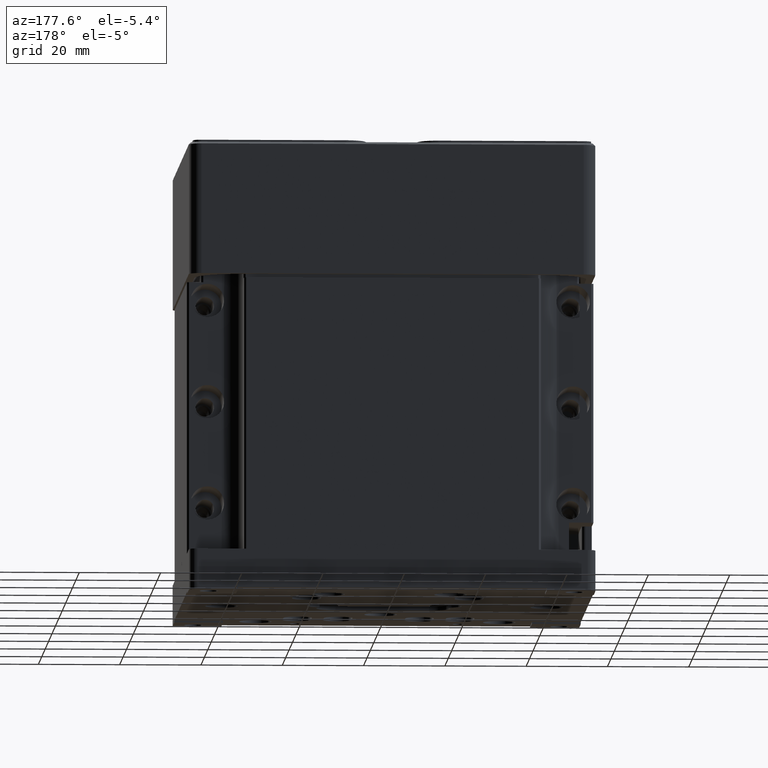
[diagram: clean part render]
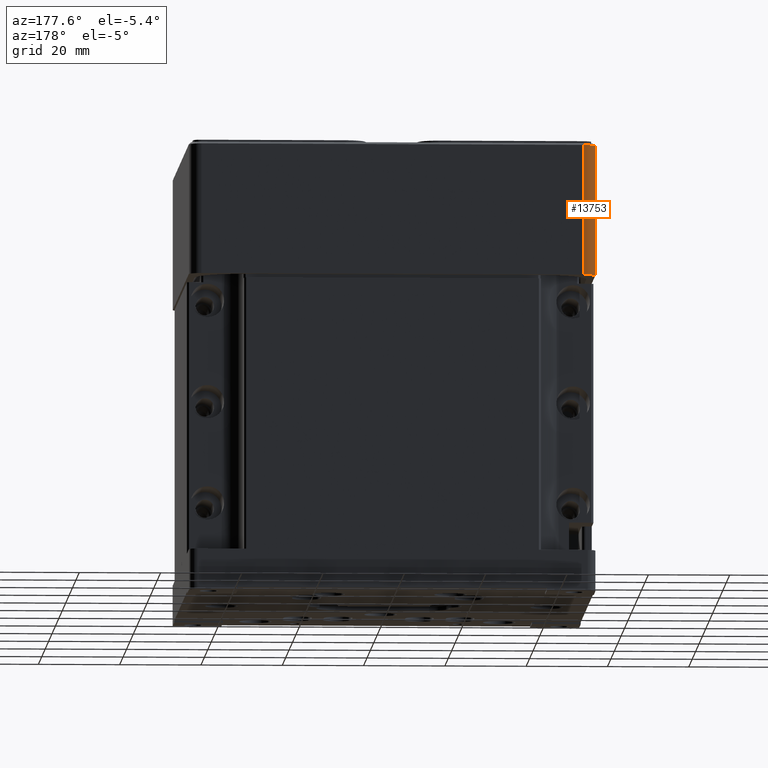
[diagram: same view with one face highlighted and labeled with its STEP entity id]
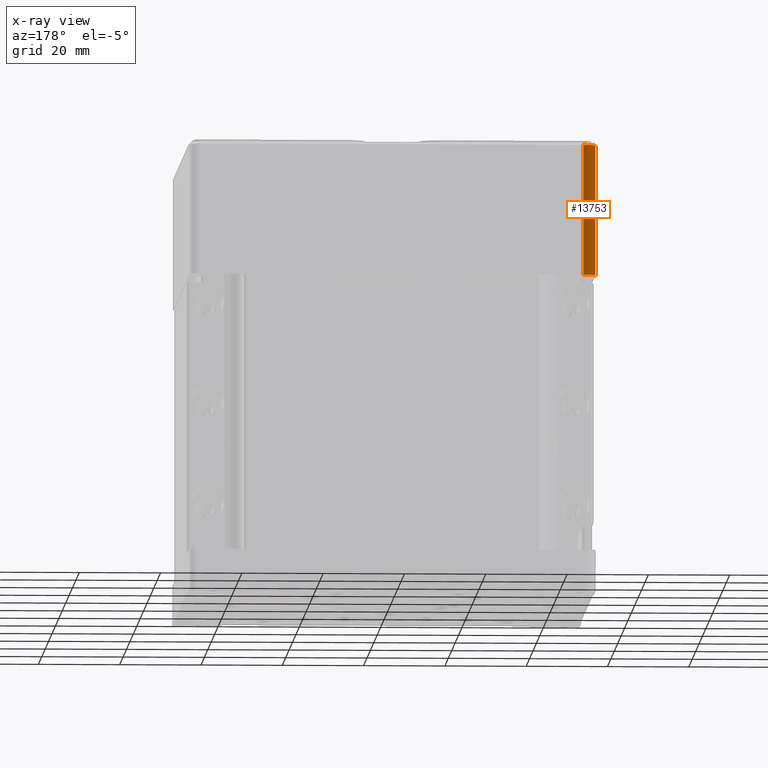
[diagram: x-ray of the same camera — body ghosted, the highlighted face saturated]
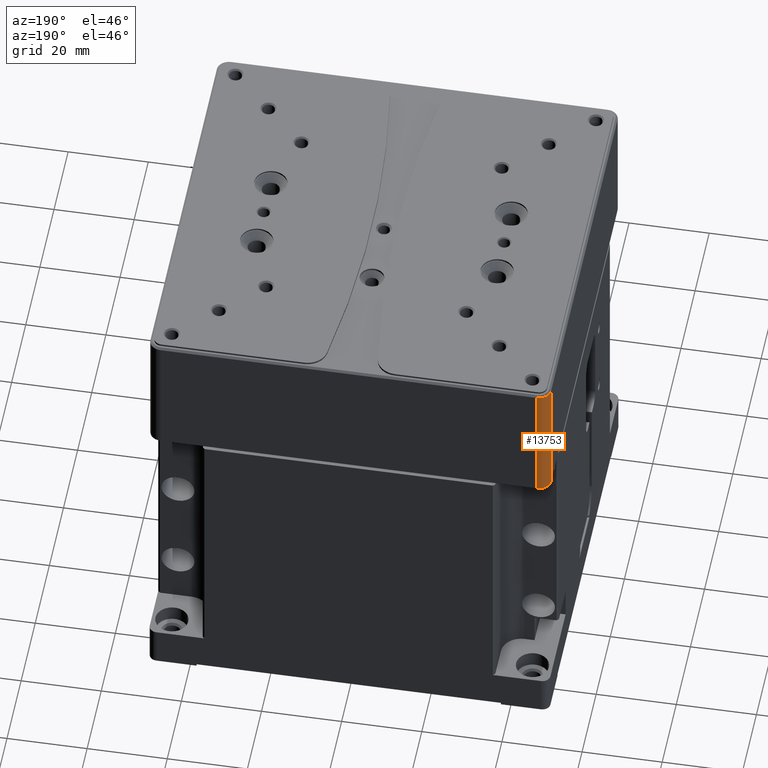
[diagram: same view with one face highlighted and labeled with its STEP entity id]
A machine part, auxiliary view. The second image highlights one B-rep face of the part: STEP entity #13753.
The next image is the same camera in x-ray: the body ghosted, the highlighted face saturated — about 0% of this face is hidden behind the body in this view.
A second angle (auxiliary view) of the same face is appended — the face is thin or edge-on in the first view.
In plain terms, the highlighted cylindrical surface (edge-blend (fillet) strip) has radius 3 mm, axis along (0, 0, -1).
Its self-contained STEP definition (entity closure, byte-faithful):
#1817 = VERTEX_POINT ( 'NONE', #2873 ) ;
#2837 = DIRECTION ( 'NONE',  ( -0.000000000000000000, -0.000000000000000000, 1.000000000000000000 ) ) ;
#2873 = CARTESIAN_POINT ( 'NONE',  ( -47.00000000000000000, 50.00000000000000000, 100.0000000000000000 ) ) ;
#3479 = VECTOR ( 'NONE', #20884, 1000.000000000000000 ) ;
#8636 = DIRECTION ( 'NONE',  ( 0.000000000000000000, 0.000000000000000000, -1.000000000000000000 ) ) ;
#8911 = ORIENTED_EDGE ( 'NONE', *, *, #24024, .T. ) ;
#9093 = DIRECTION ( 'NONE',  ( -1.000000000000000000, 0.000000000000000000, 0.000000000000000000 ) ) ;
#9284 = DIRECTION ( 'NONE',  ( 0.000000000000000000, 0.000000000000000000, -1.000000000000000000 ) ) ;
#11152 = LINE ( 'NONE', #36598, #3479 ) ;
#12006 = CARTESIAN_POINT ( 'NONE',  ( -47.00000000000000000, 50.00000000000000000, 68.00000000000000000 ) ) ;
#12169 = VERTEX_POINT ( 'NONE', #12006 ) ;
#12785 = DIRECTION ( 'NONE',  ( 0.000000000000000000, 0.000000000000000000, -1.000000000000000000 ) ) ;
#12798 = AXIS2_PLACEMENT_3D ( 'NONE', #30745, #9284, #9093 ) ;
#13753 = ADVANCED_FACE ( 'NONE', ( #37485 ), #15005, .T. ) ;
#15005 = CYLINDRICAL_SURFACE ( 'NONE', #22663, 3.000000000000002665 ) ;
#17645 = EDGE_CURVE ( 'NONE', #37074, #1817, #34487, .T. ) ;
#17936 = ORIENTED_EDGE ( 'NONE', *, *, #17645, .T. ) ;
#20467 = AXIS2_PLACEMENT_3D ( 'NONE', #28900, #12785, #25717 ) ;
#20884 = DIRECTION ( 'NONE',  ( 0.000000000000000000, -0.000000000000000000, -1.000000000000000000 ) ) ;
#21142 = VECTOR ( 'NONE', #2837, 1000.000000000000000 ) ;
#21544 = DIRECTION ( 'NONE',  ( -1.000000000000000000, 0.000000000000000000, 0.000000000000000000 ) ) ;
#22663 = AXIS2_PLACEMENT_3D ( 'NONE', #40873, #8636, #21544 ) ;
#22714 = CARTESIAN_POINT ( 'NONE',  ( -50.00000000000000000, 47.00000000000000000, 100.5000000000000000 ) ) ;
#24024 = EDGE_CURVE ( 'NONE', #38305, #37074, #35057, .T. ) ;
#25163 = EDGE_CURVE ( 'NONE', #38305, #12169, #40815, .T. ) ;
#25717 = DIRECTION ( 'NONE',  ( -1.000000000000000000, 0.000000000000000000, 0.000000000000000000 ) ) ;
#28900 = CARTESIAN_POINT ( 'NONE',  ( -47.00000000000000000, 47.00000000000000000, 68.00000000000000000 ) ) ;
#30745 = CARTESIAN_POINT ( 'NONE',  ( -47.00000000000000000, 47.00000000000000000, 100.0000000000000000 ) ) ;
#31641 = EDGE_LOOP ( 'NONE', ( #39613, #41446, #8911, #17936 ) ) ;
#32373 = CARTESIAN_POINT ( 'NONE',  ( -49.99999999998863842, 47.00000000000000000, 100.0000000000056986 ) ) ;
#33881 = EDGE_CURVE ( 'NONE', #1817, #12169, #11152, .T. ) ;
#34487 = CIRCLE ( 'NONE', #12798, 3.000000000000002665 ) ;
#35057 = LINE ( 'NONE', #22714, #21142 ) ;
#36598 = CARTESIAN_POINT ( 'NONE',  ( -47.00000000000000000, 50.00000000000000000, 100.5000000000000000 ) ) ;
#37074 = VERTEX_POINT ( 'NONE', #32373 ) ;
#37485 = FACE_OUTER_BOUND ( 'NONE', #31641, .T. ) ;
#38305 = VERTEX_POINT ( 'NONE', #38707 ) ;
#38707 = CARTESIAN_POINT ( 'NONE',  ( -50.00000000000001421, 47.00000000000000000, 68.00000000000000000 ) ) ;
#39613 = ORIENTED_EDGE ( 'NONE', *, *, #33881, .T. ) ;
#40815 = CIRCLE ( 'NONE', #20467, 3.000000000000002665 ) ;
#40873 = CARTESIAN_POINT ( 'NONE',  ( -47.00000000000000000, 47.00000000000000000, 100.5000000000000000 ) ) ;
#41446 = ORIENTED_EDGE ( 'NONE', *, *, #25163, .F. ) ;